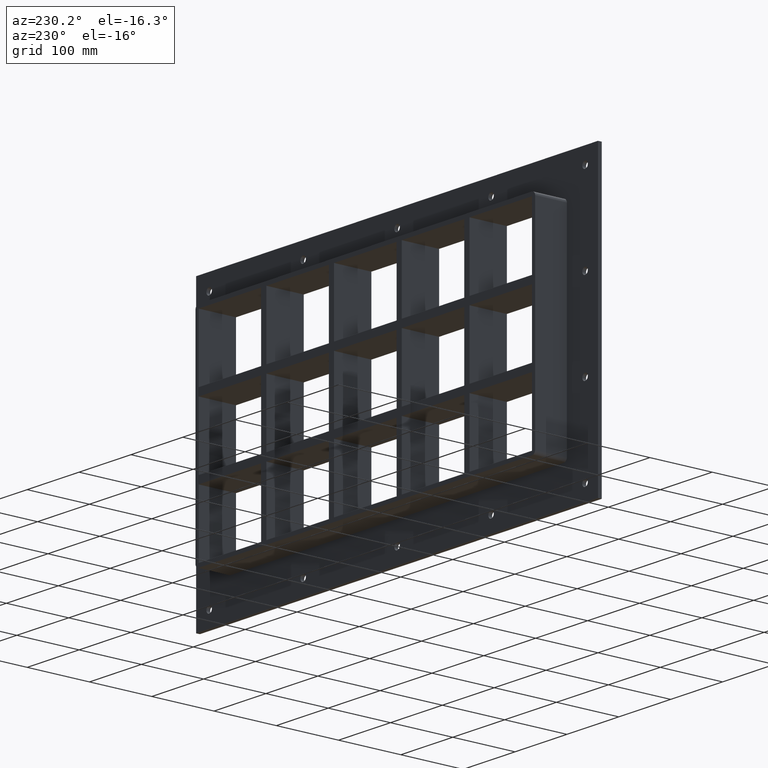
[diagram: clean part render]
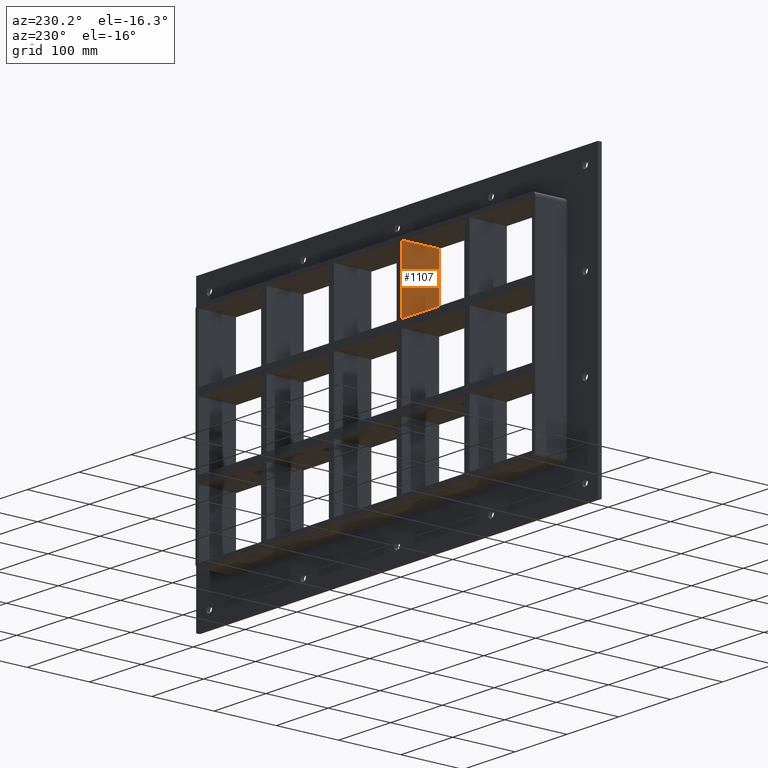
[diagram: same view with one face highlighted and labeled with its STEP entity id]
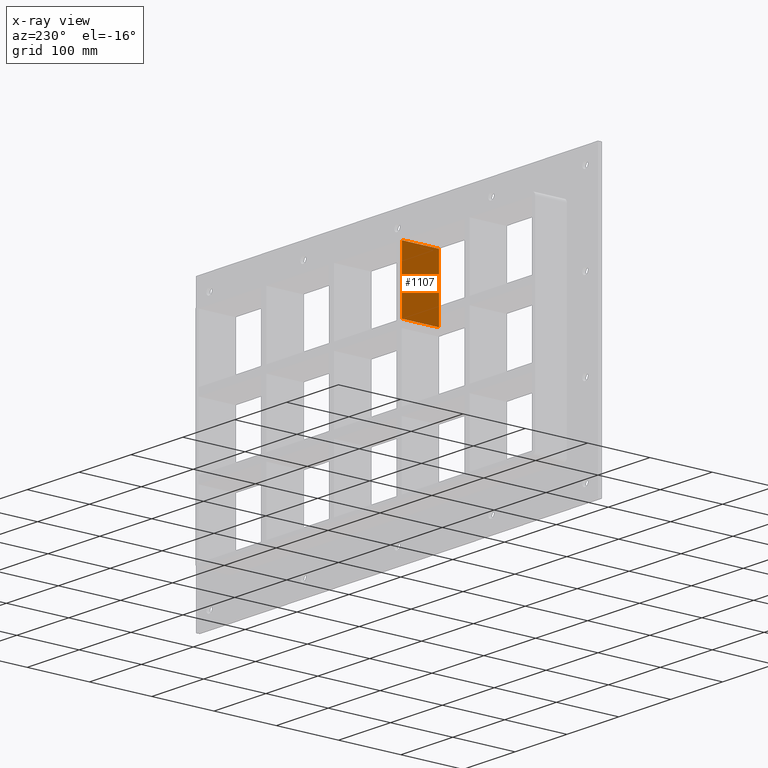
[diagram: x-ray of the same camera — body ghosted, the highlighted face saturated]
A machine part, auxiliary view. The second image highlights one B-rep face of the part: STEP entity #1107.
The next image is the same camera in x-ray: the body ghosted, the highlighted face saturated — about 0% of this face is hidden behind the body in this view.
In plain terms, the highlighted planar face has unit normal (-1, 0, 0).
Its self-contained STEP definition (entity closure, byte-faithful):
#745=CARTESIAN_POINT('',(-70.250000000002075,57.0,62.499999999999893));
#746=VERTEX_POINT('',#745);
#747=CARTESIAN_POINT('',(-70.250000000002075,-3.0,62.499999999999893));
#748=VERTEX_POINT('',#747);
#749=CARTESIAN_POINT('',(-70.250000000002075,57.0,62.499999999999893));
#750=DIRECTION('',(0.0,-1.0,0.0));
#751=VECTOR('',#750,60.0);
#752=LINE('',#749,#751);
#753=EDGE_CURVE('',#746,#748,#752,.T.);
#1077=CARTESIAN_POINT('',(-70.250000000002075,-3.0,-163.50000000000006));
#1078=DIRECTION('',(-1.0,0.0,0.0));
#1079=DIRECTION('',(0.0,0.0,1.0));
#1080=AXIS2_PLACEMENT_3D('',#1077,#1078,#1079);
#1081=PLANE('',#1080);
#1082=ORIENTED_EDGE('',*,*,#753,.T.);
#1083=CARTESIAN_POINT('',(-70.250000000002075,-3.0,163.50000000000006));
#1084=VERTEX_POINT('',#1083);
#1085=CARTESIAN_POINT('',(-70.250000000002075,-3.0,62.499999999999886));
#1086=DIRECTION('',(0.0,0.0,1.0));
#1087=VECTOR('',#1086,101.00000000000017);
#1088=LINE('',#1085,#1087);
#1089=EDGE_CURVE('',#748,#1084,#1088,.T.);
#1090=ORIENTED_EDGE('',*,*,#1089,.T.);
#1091=CARTESIAN_POINT('',(-70.250000000002075,57.0,163.50000000000006));
#1092=VERTEX_POINT('',#1091);
#1093=CARTESIAN_POINT('',(-70.250000000002061,57.000000000000007,163.50000000000006));
#1094=DIRECTION('',(0.0,-1.0,0.0));
#1095=VECTOR('',#1094,60.000000000000007);
#1096=LINE('',#1093,#1095);
#1097=EDGE_CURVE('',#1092,#1084,#1096,.T.);
#1098=ORIENTED_EDGE('',*,*,#1097,.F.);
#1099=CARTESIAN_POINT('',(-70.250000000002075,57.0,62.499999999999886));
#1100=DIRECTION('',(0.0,0.0,1.0));
#1101=VECTOR('',#1100,101.00000000000017);
#1102=LINE('',#1099,#1101);
#1103=EDGE_CURVE('',#746,#1092,#1102,.T.);
#1104=ORIENTED_EDGE('',*,*,#1103,.F.);
#1105=EDGE_LOOP('',(#1082,#1090,#1098,#1104));
#1106=FACE_OUTER_BOUND('',#1105,.T.);
#1107=ADVANCED_FACE('',(#1106),#1081,.T.);